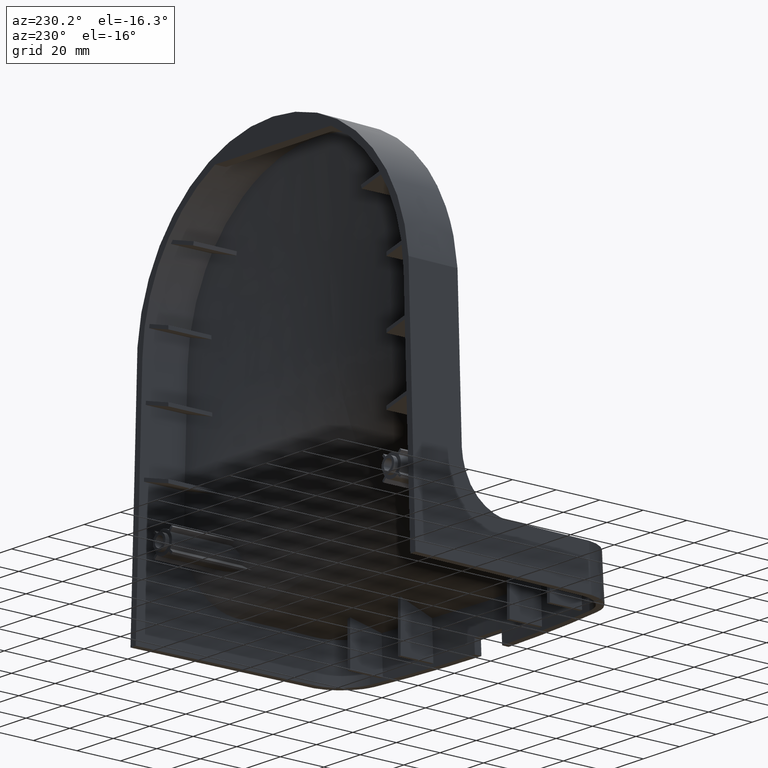
[diagram: clean part render]
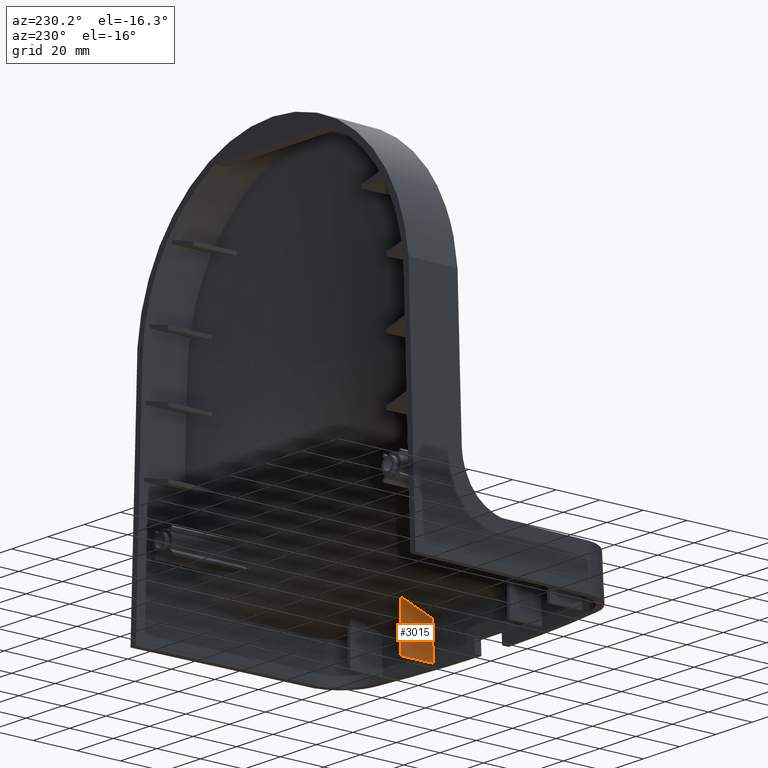
[diagram: same view with one face highlighted and labeled with its STEP entity id]
A machine part, auxiliary view. The second image highlights one B-rep face of the part: STEP entity #3015.
In plain terms, the highlighted planar face has unit normal (-1, 0, 0).
Its self-contained STEP definition (entity closure, byte-faithful):
#66 = CARTESIAN_POINT ( 'NONE',  ( 29.25000000000002132, -90.49294804021636196, 20.58808098940746589 ) ) ;
#1086 = CARTESIAN_POINT ( 'NONE',  ( 29.25000000000000000, -97.99191962562750291, 1.500000000000000000 ) ) ;
#2329 = CARTESIAN_POINT ( 'NONE',  ( 29.25000000000000000, -82.99481904482219363, 1.500000000000000000 ) ) ;
#3015 = ADVANCED_FACE ( 'NONE', ( #50196 ), #15169, .T. ) ;
#4467 = LINE ( 'NONE', #30470, #11625 ) ;
#4473 = AXIS2_PLACEMENT_3D ( 'NONE', #36640, #49650, #19395 ) ;
#4599 = CARTESIAN_POINT ( 'NONE',  ( 29.25000000000002842, -90.31331617745873075, 20.65254246907070979 ) ) ;
#5724 = CARTESIAN_POINT ( 'NONE',  ( 29.25000000000002842, -84.53346214598521158, 22.66405930100745536 ) ) ;
#7431 = ORIENTED_EDGE ( 'NONE', *, *, #45364, .T. ) ;
#7719 = CARTESIAN_POINT ( 'NONE',  ( 29.25000000000001776, -89.48099697542694742, 20.94920587444449112 ) ) ;
#8282 = CARTESIAN_POINT ( 'NONE',  ( 29.25000000000003197, -90.74499905756030671, 20.49732385327783746 ) ) ;
#8560 = CARTESIAN_POINT ( 'NONE',  ( 29.25000000000002487, -92.27109600121799815, 19.94033773577067947 ) ) ;
#9032 = CARTESIAN_POINT ( 'NONE',  ( 29.25000000000000000, -97.58196867006249420, 13.21449764955693951 ) ) ;
#9411 = CARTESIAN_POINT ( 'NONE',  ( 29.25000000000003553, -87.14730500009508773, 21.75955554794958147 ) ) ;
#10144 = CARTESIAN_POINT ( 'NONE',  ( 29.25000000000000000, -97.91363548070499689, 3.737000717609560319 ) ) ;
#11466 = ORIENTED_EDGE ( 'NONE', *, *, #11490, .F. ) ;
#11490 = EDGE_CURVE ( 'NONE', #43028, #22110, #4467, .T. ) ;
#11625 = VECTOR ( 'NONE', #17483, 1000.000000000000000 ) ;
#11863 = EDGE_CURVE ( 'NONE', #17107, #22110, #21714, .T. ) ;
#15169 = PLANE ( 'NONE',  #4473 ) ;
#15746 = VERTEX_POINT ( 'NONE', #26235 ) ;
#17107 = VERTEX_POINT ( 'NONE', #32017 ) ;
#17198 = DIRECTION ( 'NONE',  ( -8.705124273311898807E-17, 0.000000000000000000, -1.000000000000000000 ) ) ;
#17483 = DIRECTION ( 'NONE',  ( 0.000000000000000000, 1.000000000000000000, 0.000000000000000000 ) ) ;
#19395 = DIRECTION ( 'NONE',  ( 0.000000000000000000, 1.000000000000000000, 0.000000000000000000 ) ) ;
#19490 = ORIENTED_EDGE ( 'NONE', *, *, #11863, .T. ) ;
#21714 = LINE ( 'NONE', #51969, #36892 ) ;
#22110 = VERTEX_POINT ( 'NONE', #2329 ) ;
#22123 = CARTESIAN_POINT ( 'NONE',  ( 29.25000000000001776, -88.95483549123194678, 21.13381404535630281 ) ) ;
#22401 = CARTESIAN_POINT ( 'NONE',  ( 29.25000000000002487, -88.12977852272229029, 21.42045950699867163 ) ) ;
#22679 = CARTESIAN_POINT ( 'NONE',  ( 29.25000000000002487, -86.88270490580730154, 21.85059558733894036 ) ) ;
#22856 = CARTESIAN_POINT ( 'NONE',  ( 29.25000000000000000, -97.99191962562750291, 1.500000000000000000 ) ) ;
#26072 = CARTESIAN_POINT ( 'NONE',  ( 29.25000000000002487, -96.17233778572067138, 18.45075261398203281 ) ) ;
#26235 = CARTESIAN_POINT ( 'NONE',  ( 29.25000000000000000, -97.41613467754929445, 17.95324609498169721 ) ) ;
#26359 = CARTESIAN_POINT ( 'NONE',  ( 29.25000000000001776, -86.68423481690194876, 21.91881759342860647 ) ) ;
#26640 = CARTESIAN_POINT ( 'NONE',  ( 29.25000000000002487, -86.62149954357791160, 21.94037062121223514 ) ) ;
#27471 = CARTESIAN_POINT ( 'NONE',  ( 29.25000000000000000, -82.99481904482098571, 23.20546327944974863 ) ) ;
#28684 = EDGE_LOOP ( 'NONE', ( #29177, #7431, #19490, #11466 ) ) ;
#29177 = ORIENTED_EDGE ( 'NONE', *, *, #29451, .F. ) ;
#29451 = EDGE_CURVE ( 'NONE', #15746, #43028, #49163, .T. ) ;
#29751 = CARTESIAN_POINT ( 'NONE',  ( 29.25000000000000000, -97.41613467754929445, 17.95324609498169721 ) ) ;
#30470 = CARTESIAN_POINT ( 'NONE',  ( 29.25000000000000000, -82.99481904482219363, 1.500000000000000000 ) ) ;
#30787 = CARTESIAN_POINT ( 'NONE',  ( 29.25000000000000000, -97.74780227067959970, 8.475749190417650070 ) ) ;
#30886 = CARTESIAN_POINT ( 'NONE',  ( 29.25000000000002132, -86.63697749751096921, 21.93505357656507471 ) ) ;
#32017 = CARTESIAN_POINT ( 'NONE',  ( 29.25000000000000000, -82.99481904482098571, 23.20546327944974863 ) ) ;
#33450 = CARTESIAN_POINT ( 'NONE',  ( 29.25000000000002132, -90.27742615831085971, 20.66540196380546135 ) ) ;
#35594 = CARTESIAN_POINT ( 'NONE',  ( 29.25000000000000000, -97.93973020534880902, 2.991333812078095011 ) ) ;
#35966 = CARTESIAN_POINT ( 'NONE',  ( 29.25000000000002132, -88.73039136253613890, 21.21207513595263094 ) ) ;
#36640 = CARTESIAN_POINT ( 'NONE',  ( 29.25000000004354916, -82.99481904482219363, 500000.0000000000000 ) ) ;
#36892 = VECTOR ( 'NONE', #17198, 1000.000000000000000 ) ;
#37487 = B_SPLINE_CURVE_WITH_KNOTS ( 'NONE', 3,
 ( #29751, #26072, #38812, #8560, #47003, #8282, #66, #42196, #4599, #33450, #54929, #46443, #7719, #22123, #35966, #44167, #43611, #22401, #53215, #9411, #22679, #40204, #26359, #44713, #30886, #39376, #26640, #39932, #5724, #27471 ),
 .UNSPECIFIED., .F., .F.,
 ( 4, 1, 1, 1, 1, 1, 1, 2, 2, 1, 1, 2, 2, 1, 1, 1, 1, 1, 1, 2, 2, 4 ),
 ( 0.000000000000000000, 0.2499999999999891198, 0.3749999999999824030, 0.4374999999999789058, 0.4687499999999758526, 0.4843749999999742983, 0.4921874999999721889, 0.4960937499999699130, 0.4999999999999676370, 0.5624999999999414912, 0.5937499999999282796, 0.6093749999999205080, 0.6249999999999127365, 0.6874999999998818723, 0.7187499999998651079, 0.7343749999998582245, 0.7421874999998547828, 0.7460937499998543387, 0.7480468749998528954, 0.7490234374998535616, 0.7499999999998543387, 1.000000000000000000 ),
 .UNSPECIFIED. ) ;
#38812 = CARTESIAN_POINT ( 'NONE',  ( 29.25000000000001776, -94.34266749834539212, 19.16450743974943194 ) ) ;
#39376 = CARTESIAN_POINT ( 'NONE',  ( 29.25000000000003908, -86.62752592809475516, 21.93830046728832528 ) ) ;
#39932 = CARTESIAN_POINT ( 'NONE',  ( 29.25000000000003197, -85.74121390024875211, 22.24275394468122613 ) ) ;
#40204 = CARTESIAN_POINT ( 'NONE',  ( 29.25000000000001776, -86.75039341969791451, 21.89608245085640092 ) ) ;
#42196 = CARTESIAN_POINT ( 'NONE',  ( 29.25000000000001776, -90.36716879653705803, 20.63323735539466597 ) ) ;
#43028 = VERTEX_POINT ( 'NONE', #1086 ) ;
#43611 = CARTESIAN_POINT ( 'NONE',  ( 29.25000000000002842, -88.50749540684580552, 21.28958129448221470 ) ) ;
#44167 = CARTESIAN_POINT ( 'NONE',  ( 29.25000000000002487, -88.58099608790446666, 21.26405881928068453 ) ) ;
#44713 = CARTESIAN_POINT ( 'NONE',  ( 29.25000000000001776, -86.65115480056851993, 21.93018309249214326 ) ) ;
#45364 = EDGE_CURVE ( 'NONE', #15746, #17107, #37487, .T. ) ;
#46443 = CARTESIAN_POINT ( 'NONE',  ( 29.25000000000002842, -89.93620713428802560, 20.78754351197176575 ) ) ;
#47003 = CARTESIAN_POINT ( 'NONE',  ( 29.25000000000002487, -91.25107121219019746, 20.31403196697860380 ) ) ;
#48043 = CARTESIAN_POINT ( 'NONE',  ( 29.25000000000000000, -97.96582492032129608, 2.245666906208179991 ) ) ;
#49163 = B_SPLINE_CURVE_WITH_KNOTS ( 'NONE', 3,
 ( #52565, #9032, #30787, #10144, #35594, #48043, #22856 ),
 .UNSPECIFIED., .F., .F.,
 ( 4, 3, 4 ),
 ( 0.01972834922287240028, 0.03395329701464980254, 0.03619166709529589993 ),
 .UNSPECIFIED. ) ;
#49650 = DIRECTION ( 'NONE',  ( -1.000000000000000000, 0.000000000000000000, 8.705124273311898807E-17 ) ) ;
#50196 = FACE_OUTER_BOUND ( 'NONE', #28684, .T. ) ;
#51969 = CARTESIAN_POINT ( 'NONE',  ( 29.25000000004354916, -82.99481904482219363, 500000.0000000000000 ) ) ;
#52565 = CARTESIAN_POINT ( 'NONE',  ( 29.25000000000000000, -97.41613467754929445, 17.95324609498169721 ) ) ;
#53215 = CARTESIAN_POINT ( 'NONE',  ( 29.25000000000002132, -87.67641367694695020, 21.57721021868042044 ) ) ;
#54929 = CARTESIAN_POINT ( 'NONE',  ( 29.25000000000002842, -90.26063789172167162, 20.67141446665132776 ) ) ;